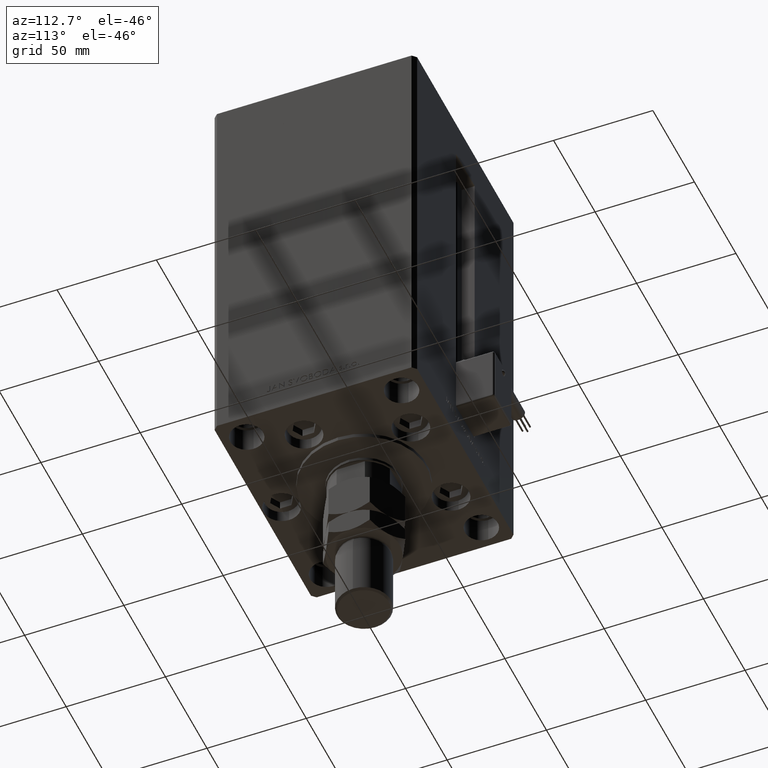
[diagram: clean part render]
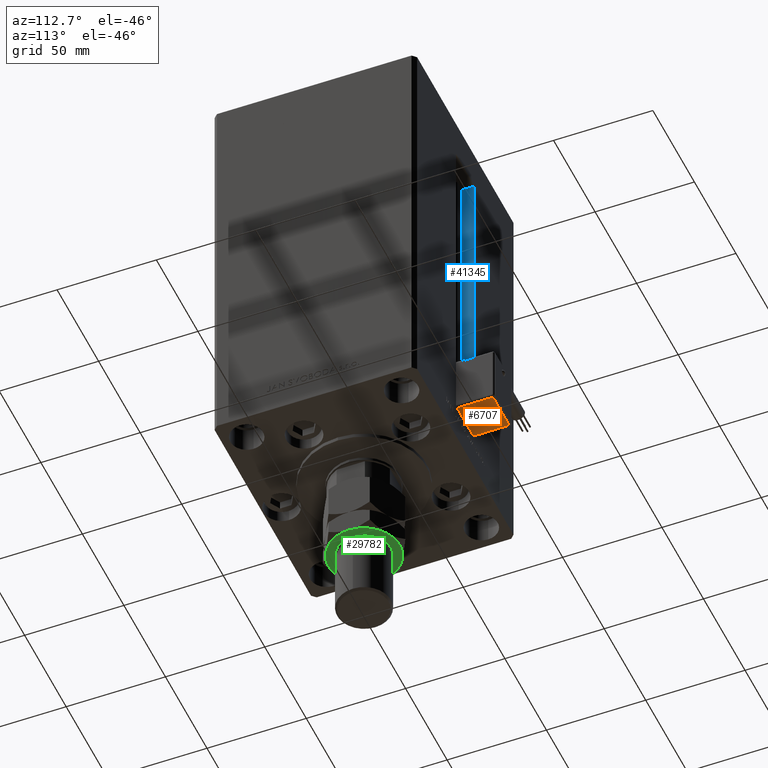
[diagram: same view with three faces highlighted in distinct colors, each labeled with its STEP entity id]
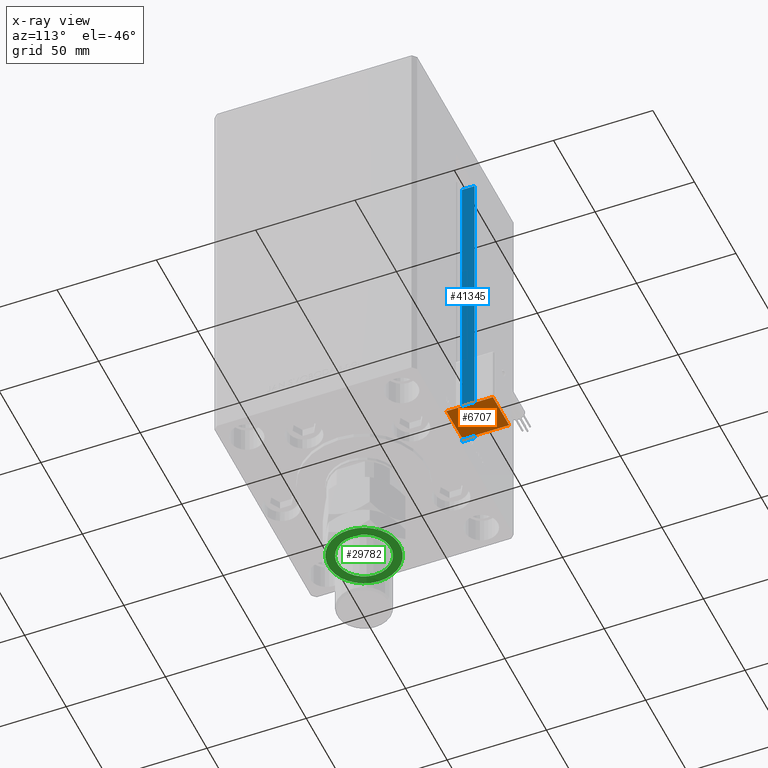
[diagram: x-ray of the same camera — body ghosted, the three highlighted faces saturated]
A machine part, auxiliary view with three faces highlighted in distinct colors.
The next image is the same camera in x-ray (body ghosted, the three faces saturated) — at least one of them is partly hidden behind the body in this view.
Their STEP definitions:

[orange] entity #6707 — the highlighted planar face has unit normal (-0, 0, 1).
#147 = DIRECTION ( 'NONE',  ( -3.108624468950000014E-32, 1.000000000000000000, 1.400000000000000069E-16 ) ) ;
#922 = DIRECTION ( 'NONE',  ( 3.108624468950000014E-32, -1.000000000000000000, -1.400000000000000069E-16 ) ) ;
#2952 = CARTESIAN_POINT ( 'NONE',  ( 10.80000000000000071, 27.00000000000000000, -25.00000000000000000 ) ) ;
#4525 = FACE_OUTER_BOUND ( 'NONE', #48819, .T. ) ;
#5320 = DIRECTION ( 'NONE',  ( 2.220446049250000002E-16, 1.400000000000000069E-16, -1.000000000000000000 ) ) ;
#6707 = ADVANCED_FACE ( 'NONE', ( #4525 ), #51017, .F. ) ;
#8358 = ORIENTED_EDGE ( 'NONE', *, *, #53513, .T. ) ;
#11097 = DIRECTION ( 'NONE',  ( 1.000000000000000000, 0.000000000000000000, 2.220446049250000002E-16 ) ) ;
#11353 = LINE ( 'NONE', #2952, #18534 ) ;
#11852 = CARTESIAN_POINT ( 'NONE',  ( 9.799999999999998934, 51.50000000000000000, -25.00000000000000000 ) ) ;
#12116 = LINE ( 'NONE', #11852, #16896 ) ;
#12957 = CARTESIAN_POINT ( 'NONE',  ( 10.80000000000000071, 51.50000000000000000, -25.00000000000000000 ) ) ;
#16896 = VECTOR ( 'NONE', #147, 1000.000000000000000 ) ;
#17665 = VERTEX_POINT ( 'NONE', #47264 ) ;
#18534 = VECTOR ( 'NONE', #11097, 1000.000000000000000 ) ;
#20163 = CARTESIAN_POINT ( 'NONE',  ( 10.80000000000000071, 50.50000000000000000, -25.00000000000000000 ) ) ;
#21099 = DIRECTION ( 'NONE',  ( 0.000000000000000000, -1.000000000000000000, -1.400000000000000069E-16 ) ) ;
#21750 = ORIENTED_EDGE ( 'NONE', *, *, #53701, .T. ) ;
#22101 = LINE ( 'NONE', #38963, #37560 ) ;
#23814 = AXIS2_PLACEMENT_3D ( 'NONE', #12957, #5320, #21099 ) ;
#23915 = CARTESIAN_POINT ( 'NONE',  ( -9.799999999999998934, 50.50000000000000000, -25.00000000000000000 ) ) ;
#31970 = ORIENTED_EDGE ( 'NONE', *, *, #41955, .T. ) ;
#36375 = EDGE_CURVE ( 'NONE', #41077, #40148, #22101, .T. ) ;
#36504 = LINE ( 'NONE', #20163, #53286 ) ;
#36768 = DIRECTION ( 'NONE',  ( -1.000000000000000000, 0.000000000000000000, -2.220446049250000002E-16 ) ) ;
#37560 = VECTOR ( 'NONE', #922, 1000.000000000000000 ) ;
#38558 = CARTESIAN_POINT ( 'NONE',  ( -9.799999999999998934, 27.00000000000000000, -25.00000000000000000 ) ) ;
#38963 = CARTESIAN_POINT ( 'NONE',  ( -9.799999999999998934, 51.50000000000000000, -25.00000000000000000 ) ) ;
#39007 = ORIENTED_EDGE ( 'NONE', *, *, #36375, .T. ) ;
#40148 = VERTEX_POINT ( 'NONE', #38558 ) ;
#41077 = VERTEX_POINT ( 'NONE', #23915 ) ;
#41955 = EDGE_CURVE ( 'NONE', #51598, #17665, #12116, .T. ) ;
#47264 = CARTESIAN_POINT ( 'NONE',  ( 9.799999999999998934, 50.50000000000000000, -25.00000000000000000 ) ) ;
#48819 = EDGE_LOOP ( 'NONE', ( #39007, #21750, #31970, #8358 ) ) ;
#51017 = PLANE ( 'NONE',  #23814 ) ;
#51598 = VERTEX_POINT ( 'NONE', #52447 ) ;
#52447 = CARTESIAN_POINT ( 'NONE',  ( 9.799999999999998934, 27.00000000000000000, -25.00000000000000000 ) ) ;
#53286 = VECTOR ( 'NONE', #36768, 1000.000000000000000 ) ;
#53513 = EDGE_CURVE ( 'NONE', #17665, #41077, #36504, .T. ) ;
#53701 = EDGE_CURVE ( 'NONE', #40148, #51598, #11353, .T. ) ;

[blue] entity #41345 — the highlighted planar face has unit normal (-1, 0, 0).
#4783 = CARTESIAN_POINT ( 'NONE',  ( -11.25000000000000178, 51.00000000000000000, 168.5000000000000000 ) ) ;
#5447 = ORIENTED_EDGE ( 'NONE', *, *, #43425, .F. ) ;
#5722 = VERTEX_POINT ( 'NONE', #4783 ) ;
#6884 = CARTESIAN_POINT ( 'NONE',  ( -11.25000000000000178, 44.50000000000000000, 168.5000000000000000 ) ) ;
#7231 = LINE ( 'NONE', #32237, #18150 ) ;
#8039 = DIRECTION ( 'NONE',  ( -0.000000000000000000, -0.000000000000000000, 1.000000000000000000 ) ) ;
#11179 = EDGE_LOOP ( 'NONE', ( #5447, #18734, #33487, #22457 ) ) ;
#13224 = DIRECTION ( 'NONE',  ( -1.000000000000000000, 0.000000000000000000, 0.000000000000000000 ) ) ;
#16419 = DIRECTION ( 'NONE',  ( -0.000000000000000000, -1.000000000000000000, -0.000000000000000000 ) ) ;
#17223 = CARTESIAN_POINT ( 'NONE',  ( -11.25000000000000178, 44.50000000000000000, 0.000000000000000000 ) ) ;
#18059 = EDGE_CURVE ( 'NONE', #49844, #43148, #53418, .T. ) ;
#18150 = VECTOR ( 'NONE', #8039, 1000.000000000000000 ) ;
#18446 = VECTOR ( 'NONE', #31085, 1000.000000000000000 ) ;
#18734 = ORIENTED_EDGE ( 'NONE', *, *, #18059, .F. ) ;
#21556 = CARTESIAN_POINT ( 'NONE',  ( -11.25000000000000178, 44.50000000000000000, 0.000000000000000000 ) ) ;
#21643 = VERTEX_POINT ( 'NONE', #6884 ) ;
#22457 = ORIENTED_EDGE ( 'NONE', *, *, #36492, .F. ) ;
#23959 = LINE ( 'NONE', #42094, #29132 ) ;
#24930 = CARTESIAN_POINT ( 'NONE',  ( -11.25000000000000178, 44.50000000000000000, 0.000000000000000000 ) ) ;
#26315 = EDGE_CURVE ( 'NONE', #49844, #5722, #7231, .T. ) ;
#26759 = VECTOR ( 'NONE', #16419, 1000.000000000000000 ) ;
#29132 = VECTOR ( 'NONE', #36730, 1000.000000000000000 ) ;
#29285 = FACE_OUTER_BOUND ( 'NONE', #11179, .T. ) ;
#31085 = DIRECTION ( 'NONE',  ( 0.000000000000000000, 1.000000000000000000, 0.000000000000000000 ) ) ;
#32237 = CARTESIAN_POINT ( 'NONE',  ( -11.25000000000000178, 51.00000000000000000, 0.000000000000000000 ) ) ;
#33355 = DIRECTION ( 'NONE',  ( 0.000000000000000000, 0.000000000000000000, 1.000000000000000000 ) ) ;
#33487 = ORIENTED_EDGE ( 'NONE', *, *, #26315, .T. ) ;
#34261 = AXIS2_PLACEMENT_3D ( 'NONE', #24930, #13224, #33355 ) ;
#36492 = EDGE_CURVE ( 'NONE', #21643, #5722, #51747, .T. ) ;
#36730 = DIRECTION ( 'NONE',  ( -0.000000000000000000, -0.000000000000000000, 1.000000000000000000 ) ) ;
#41345 = ADVANCED_FACE ( 'NONE', ( #29285 ), #41780, .F. ) ;
#41780 = PLANE ( 'NONE',  #34261 ) ;
#42094 = CARTESIAN_POINT ( 'NONE',  ( -11.25000000000000178, 44.50000000000000000, 0.000000000000000000 ) ) ;
#43148 = VERTEX_POINT ( 'NONE', #21556 ) ;
#43425 = EDGE_CURVE ( 'NONE', #43148, #21643, #23959, .T. ) ;
#49844 = VERTEX_POINT ( 'NONE', #51916 ) ;
#51747 = LINE ( 'NONE', #52280, #18446 ) ;
#51916 = CARTESIAN_POINT ( 'NONE',  ( -11.25000000000000178, 51.00000000000000000, 0.000000000000000000 ) ) ;
#52280 = CARTESIAN_POINT ( 'NONE',  ( -11.25000000000000178, 0.000000000000000000, 168.5000000000000000 ) ) ;
#53418 = LINE ( 'NONE', #17223, #26759 ) ;

[green] entity #29782 — the highlighted planar face has unit normal (0, 0, -1).
#96 = ORIENTED_EDGE ( 'NONE', *, *, #1514, .T. ) ;
#1514 = EDGE_CURVE ( 'NONE', #26046, #35064, #21870, .T. ) ;
#1971 = EDGE_CURVE ( 'NONE', #35064, #24024, #52323, .T. ) ;
#4263 = CARTESIAN_POINT ( 'NONE',  ( 9.000000000000001776, -15.58845726811988897, 34.00000000000000000 ) ) ;
#4314 = DIRECTION ( 'NONE',  ( -0.000000000000000000, -0.000000000000000000, -1.000000000000000000 ) ) ;
#4799 = CARTESIAN_POINT ( 'NONE',  ( 0.000000000000000000, 0.000000000000000000, 34.00000000000000000 ) ) ;
#5638 = CARTESIAN_POINT ( 'NONE',  ( -13.50000000000000178, 1.653273178848927064E-15, 34.00000000000000000 ) ) ;
#6399 = ORIENTED_EDGE ( 'NONE', *, *, #49294, .T. ) ;
#6583 = ORIENTED_EDGE ( 'NONE', *, *, #9105, .T. ) ;
#8077 = DIRECTION ( 'NONE',  ( 1.000000000000000000, 0.000000000000000000, 0.000000000000000000 ) ) ;
#8279 = EDGE_CURVE ( 'NONE', #23586, #26046, #13452, .T. ) ;
#8459 = PLANE ( 'NONE',  #51313 ) ;
#8660 = DIRECTION ( 'NONE',  ( 1.000000000000000000, 0.000000000000000000, 0.000000000000000000 ) ) ;
#9070 = AXIS2_PLACEMENT_3D ( 'NONE', #15424, #45325, #8077 ) ;
#9105 = EDGE_CURVE ( 'NONE', #24024, #40059, #49994, .T. ) ;
#9112 = DIRECTION ( 'NONE',  ( 0.000000000000000000, 0.000000000000000000, 1.000000000000000000 ) ) ;
#10290 = CIRCLE ( 'NONE', #27632, 17.99999999999999645 ) ;
#11101 = ORIENTED_EDGE ( 'NONE', *, *, #8279, .T. ) ;
#11649 = DIRECTION ( 'NONE',  ( 1.000000000000000000, 0.000000000000000000, 0.000000000000000000 ) ) ;
#11741 = CARTESIAN_POINT ( 'NONE',  ( -9.000000000000000000, 15.58845726811988897, 34.00000000000000000 ) ) ;
#12806 = FACE_BOUND ( 'NONE', #13970, .T. ) ;
#13452 = CIRCLE ( 'NONE', #43862, 17.99999999999999645 ) ;
#13970 = EDGE_LOOP ( 'NONE', ( #33262, #26128 ) ) ;
#14142 = VERTEX_POINT ( 'NONE', #5638 ) ;
#15345 = DIRECTION ( 'NONE',  ( 1.000000000000000000, 0.000000000000000000, 0.000000000000000000 ) ) ;
#15424 = CARTESIAN_POINT ( 'NONE',  ( 0.000000000000000000, 0.000000000000000000, 34.00000000000000000 ) ) ;
#15511 = ORIENTED_EDGE ( 'NONE', *, *, #24022, .T. ) ;
#16454 = DIRECTION ( 'NONE',  ( 1.000000000000000000, 0.000000000000000000, 0.000000000000000000 ) ) ;
#17886 = VERTEX_POINT ( 'NONE', #26247 ) ;
#18924 = DIRECTION ( 'NONE',  ( 1.000000000000000000, 0.000000000000000000, 0.000000000000000000 ) ) ;
#19409 = CARTESIAN_POINT ( 'NONE',  ( 0.000000000000000000, 0.000000000000000000, 34.00000000000000000 ) ) ;
#21870 = CIRCLE ( 'NONE', #41834, 17.99999999999999645 ) ;
#22359 = CARTESIAN_POINT ( 'NONE',  ( 0.000000000000000000, 0.000000000000000000, 34.00000000000000000 ) ) ;
#23171 = DIRECTION ( 'NONE',  ( 1.000000000000000000, 0.000000000000000000, 0.000000000000000000 ) ) ;
#23586 = VERTEX_POINT ( 'NONE', #11741 ) ;
#24022 = EDGE_CURVE ( 'NONE', #42502, #23586, #10290, .T. ) ;
#24024 = VERTEX_POINT ( 'NONE', #4263 ) ;
#24813 = CARTESIAN_POINT ( 'NONE',  ( 0.000000000000000000, 0.000000000000000000, 34.00000000000000000 ) ) ;
#25239 = CARTESIAN_POINT ( 'NONE',  ( 0.000000000000000000, 0.000000000000000000, 34.00000000000000000 ) ) ;
#26046 = VERTEX_POINT ( 'NONE', #33383 ) ;
#26128 = ORIENTED_EDGE ( 'NONE', *, *, #33732, .T. ) ;
#26247 = CARTESIAN_POINT ( 'NONE',  ( 13.50000000000000178, 0.000000000000000000, 34.00000000000000000 ) ) ;
#26263 = AXIS2_PLACEMENT_3D ( 'NONE', #37667, #9112, #16454 ) ;
#27632 = AXIS2_PLACEMENT_3D ( 'NONE', #4799, #41779, #34158 ) ;
#27696 = DIRECTION ( 'NONE',  ( 0.000000000000000000, 0.000000000000000000, 1.000000000000000000 ) ) ;
#28785 = CARTESIAN_POINT ( 'NONE',  ( 17.99999999999999645, 0.000000000000000000, 34.00000000000000000 ) ) ;
#28843 = DIRECTION ( 'NONE',  ( 0.000000000000000000, 0.000000000000000000, 1.000000000000000000 ) ) ;
#29782 = ADVANCED_FACE ( 'NONE', ( #12806, #45438 ), #8459, .T. ) ;
#32970 = ORIENTED_EDGE ( 'NONE', *, *, #1971, .T. ) ;
#33262 = ORIENTED_EDGE ( 'NONE', *, *, #41245, .T. ) ;
#33383 = CARTESIAN_POINT ( 'NONE',  ( -17.99999999999999645, 0.000000000000000000, 34.00000000000000000 ) ) ;
#33562 = CIRCLE ( 'NONE', #47467, 17.99999999999999645 ) ;
#33732 = EDGE_CURVE ( 'NONE', #14142, #17886, #47118, .T. ) ;
#34158 = DIRECTION ( 'NONE',  ( 1.000000000000000000, 0.000000000000000000, 0.000000000000000000 ) ) ;
#35064 = VERTEX_POINT ( 'NONE', #41454 ) ;
#35208 = DIRECTION ( 'NONE',  ( 0.000000000000000000, 0.000000000000000000, 1.000000000000000000 ) ) ;
#37667 = CARTESIAN_POINT ( 'NONE',  ( 0.000000000000000000, 0.000000000000000000, 34.00000000000000000 ) ) ;
#37739 = CARTESIAN_POINT ( 'NONE',  ( 8.999999999999998224, 15.58845726811989074, 34.00000000000000000 ) ) ;
#39201 = AXIS2_PLACEMENT_3D ( 'NONE', #25239, #4314, #8660 ) ;
#40059 = VERTEX_POINT ( 'NONE', #28785 ) ;
#41245 = EDGE_CURVE ( 'NONE', #17886, #14142, #50768, .T. ) ;
#41454 = CARTESIAN_POINT ( 'NONE',  ( -9.000000000000000000, -15.58845726811989074, 34.00000000000000000 ) ) ;
#41779 = DIRECTION ( 'NONE',  ( 0.000000000000000000, 0.000000000000000000, 1.000000000000000000 ) ) ;
#41834 = AXIS2_PLACEMENT_3D ( 'NONE', #44287, #27696, #11649 ) ;
#42502 = VERTEX_POINT ( 'NONE', #37739 ) ;
#43862 = AXIS2_PLACEMENT_3D ( 'NONE', #22359, #47914, #23171 ) ;
#44287 = CARTESIAN_POINT ( 'NONE',  ( 0.000000000000000000, 0.000000000000000000, 34.00000000000000000 ) ) ;
#45325 = DIRECTION ( 'NONE',  ( -0.000000000000000000, -0.000000000000000000, -1.000000000000000000 ) ) ;
#45438 = FACE_OUTER_BOUND ( 'NONE', #45767, .T. ) ;
#45767 = EDGE_LOOP ( 'NONE', ( #6583, #6399, #15511, #11101, #96, #32970 ) ) ;
#47118 = CIRCLE ( 'NONE', #39201, 13.50000000000000178 ) ;
#47467 = AXIS2_PLACEMENT_3D ( 'NONE', #24813, #53373, #18924 ) ;
#47914 = DIRECTION ( 'NONE',  ( 0.000000000000000000, 0.000000000000000000, 1.000000000000000000 ) ) ;
#48249 = AXIS2_PLACEMENT_3D ( 'NONE', #19409, #35208, #15345 ) ;
#49294 = EDGE_CURVE ( 'NONE', #40059, #42502, #33562, .T. ) ;
#49526 = CARTESIAN_POINT ( 'NONE',  ( 0.000000000000000000, 0.000000000000000000, 34.00000000000000000 ) ) ;
#49994 = CIRCLE ( 'NONE', #48249, 17.99999999999999645 ) ;
#50329 = DIRECTION ( 'NONE',  ( 1.000000000000000000, 0.000000000000000000, -0.000000000000000000 ) ) ;
#50768 = CIRCLE ( 'NONE', #9070, 13.50000000000000178 ) ;
#51313 = AXIS2_PLACEMENT_3D ( 'NONE', #49526, #28843, #50329 ) ;
#52323 = CIRCLE ( 'NONE', #26263, 17.99999999999999645 ) ;
#53373 = DIRECTION ( 'NONE',  ( 0.000000000000000000, 0.000000000000000000, 1.000000000000000000 ) ) ;